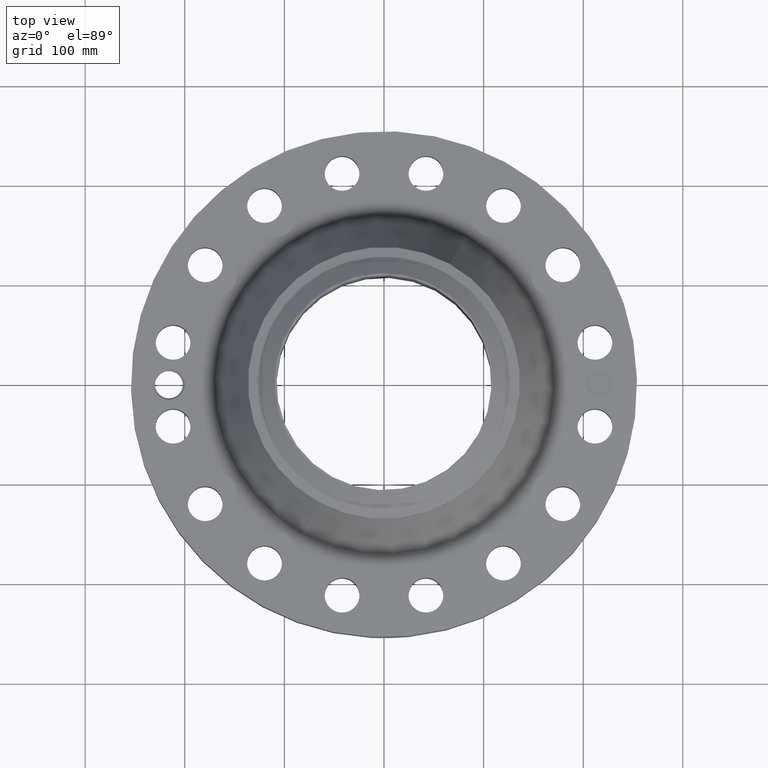
[diagram: clean part render]
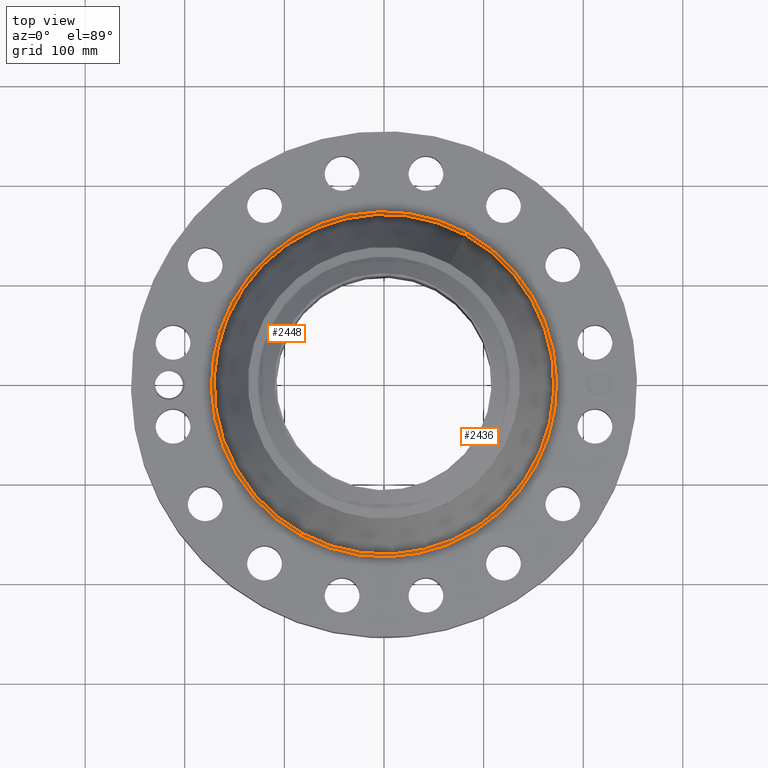
[diagram: same view with one multi-face feature highlighted, each face labeled with its STEP entity id]
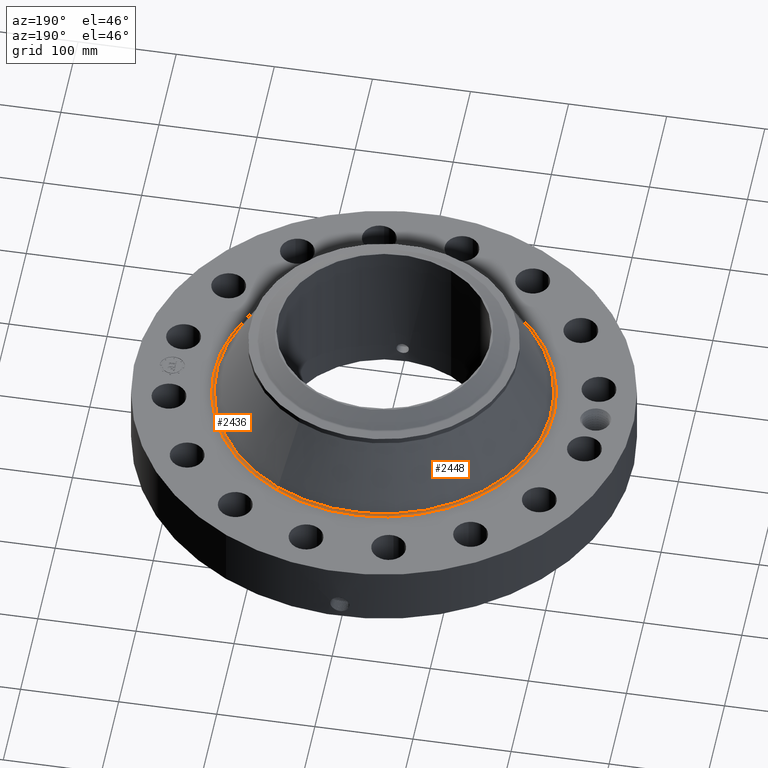
[diagram: same view with one multi-face feature highlighted, each face labeled with its STEP entity id]
A machine part, top view. The highlighted faces form ONE feature: a constant-radius fillet chain: 2 tangent blend faces with common blend radius 3.048 mm. The faces share edges in the B-rep.
A second angle (auxiliary view) of the same feature is appended — it is thin or edge-on in the first view.
Their STEP definitions:
[1] entity #2436 (Torus):
#733=AXIS2_PLACEMENT_3D('Circle Axis2P3D',#731,#732,$) ;
#2409=AXIS2_PLACEMENT_3D('Torus Axis2P3D',#2406,#2407,#2408) ;
#2413=AXIS2_PLACEMENT_3D('Circle Axis2P3D',#2411,#2412,$) ;
#2420=AXIS2_PLACEMENT_3D('Circle Axis2P3D',#2418,#2419,$) ;
#2427=AXIS2_PLACEMENT_3D('Circle Axis2P3D',#2425,#2426,$) ;
#726=CARTESIAN_POINT('Vertex',(-3.27128909565,-5.98805452376,2.75000000001)) ;
#728=CARTESIAN_POINT('Vertex',(3.27128909565,5.98805452376,2.75000000001)) ;
#731=CARTESIAN_POINT('Axis2P3D Location',(0.,0.,2.75000000001)) ;
#2406=CARTESIAN_POINT('Axis2P3D Location',(0.,0.,2.87000000001)) ;
#2411=CARTESIAN_POINT('Axis2P3D Location',(3.27128909565,5.98805452376,2.87000000001)) ;
#2415=CARTESIAN_POINT('Vertex',(3.22008704358,5.89432979612,2.81528231281)) ;
#2418=CARTESIAN_POINT('Axis2P3D Location',(0.,0.,2.81528231281)) ;
#2422=CARTESIAN_POINT('Vertex',(-3.22008704358,-5.89432979612,2.81528231281)) ;
#2425=CARTESIAN_POINT('Axis2P3D Location',(-3.27128909565,-5.98805452376,2.87000000001)) ;
#732=DIRECTION('Axis2P3D Direction',(0.,0.,-0.0393700787402)) ;
#2407=DIRECTION('Axis2P3D Direction',(0.,0.,-0.0393700787402)) ;
#2408=DIRECTION('Axis2P3D XDirection',(-0.0188750212049,-0.0345504945626,0.)) ;
#2412=DIRECTION('Axis2P3D Direction',(-0.0345504945626,0.0188750212049,0.)) ;
#2419=DIRECTION('Axis2P3D Direction',(0.,0.,-0.0393700787402)) ;
#2426=DIRECTION('Axis2P3D Direction',(0.0345504945626,-0.0188750212049,0.)) ;
#2431=ORIENTED_EDGE('',*,*,#735,.F.) ;
#2432=ORIENTED_EDGE('',*,*,#2417,.T.) ;
#2433=ORIENTED_EDGE('',*,*,#2424,.T.) ;
#2434=ORIENTED_EDGE('',*,*,#2429,.F.) ;
#2436=ADVANCED_FACE('PartBody',(#2435),#2410,.F.) ;
#734=CIRCLE('generated circle',#733,6.82335176631) ;
#2414=CIRCLE('generated circle',#2413,0.12) ;
#2421=CIRCLE('generated circle',#2420,6.71655300833) ;
#2428=CIRCLE('generated circle',#2427,0.12) ;
#2410=TOROIDAL_SURFACE('homeo Torus',#2409,6.82335176631,0.12) ;
#735=EDGE_CURVE('',#729,#727,#734,.T.) ;
#2417=EDGE_CURVE('',#729,#2416,#2414,.T.) ;
#2424=EDGE_CURVE('',#2416,#2423,#2421,.T.) ;
#2429=EDGE_CURVE('',#727,#2423,#2428,.T.) ;
#2430=EDGE_LOOP('',(#2431,#2432,#2433,#2434)) ;
#2435=FACE_OUTER_BOUND('',#2430,.T.) ;
#727=VERTEX_POINT('',#726) ;
#729=VERTEX_POINT('',#728) ;
#2416=VERTEX_POINT('',#2415) ;
#2423=VERTEX_POINT('',#2422) ;
[2] entity #2448 (Torus):
#724=AXIS2_PLACEMENT_3D('Circle Axis2P3D',#722,#723,$) ;
#2409=AXIS2_PLACEMENT_3D('Torus Axis2P3D',#2406,#2407,#2408) ;
#2413=AXIS2_PLACEMENT_3D('Circle Axis2P3D',#2411,#2412,$) ;
#2427=AXIS2_PLACEMENT_3D('Circle Axis2P3D',#2425,#2426,$) ;
#2439=AXIS2_PLACEMENT_3D('Circle Axis2P3D',#2437,#2438,$) ;
#722=CARTESIAN_POINT('Axis2P3D Location',(0.,0.,2.75000000001)) ;
#726=CARTESIAN_POINT('Vertex',(-3.27128909565,-5.98805452376,2.75000000001)) ;
#728=CARTESIAN_POINT('Vertex',(3.27128909565,5.98805452376,2.75000000001)) ;
#2406=CARTESIAN_POINT('Axis2P3D Location',(0.,0.,2.87000000001)) ;
#2411=CARTESIAN_POINT('Axis2P3D Location',(3.27128909565,5.98805452376,2.87000000001)) ;
#2415=CARTESIAN_POINT('Vertex',(3.22008704358,5.89432979612,2.81528231281)) ;
#2422=CARTESIAN_POINT('Vertex',(-3.22008704358,-5.89432979612,2.81528231281)) ;
#2425=CARTESIAN_POINT('Axis2P3D Location',(-3.27128909565,-5.98805452376,2.87000000001)) ;
#2437=CARTESIAN_POINT('Axis2P3D Location',(0.,0.,2.81528231281)) ;
#723=DIRECTION('Axis2P3D Direction',(0.,0.,-0.0393700787402)) ;
#2407=DIRECTION('Axis2P3D Direction',(0.,0.,-0.0393700787402)) ;
#2408=DIRECTION('Axis2P3D XDirection',(-0.0188750212049,-0.0345504945626,0.)) ;
#2412=DIRECTION('Axis2P3D Direction',(-0.0345504945626,0.0188750212049,0.)) ;
#2426=DIRECTION('Axis2P3D Direction',(0.0345504945626,-0.0188750212049,0.)) ;
#2438=DIRECTION('Axis2P3D Direction',(0.,0.,-0.0393700787402)) ;
#2443=ORIENTED_EDGE('',*,*,#730,.F.) ;
#2444=ORIENTED_EDGE('',*,*,#2429,.T.) ;
#2445=ORIENTED_EDGE('',*,*,#2441,.T.) ;
#2446=ORIENTED_EDGE('',*,*,#2417,.F.) ;
#2448=ADVANCED_FACE('PartBody',(#2447),#2410,.F.) ;
#725=CIRCLE('generated circle',#724,6.82335176631) ;
#2414=CIRCLE('generated circle',#2413,0.12) ;
#2428=CIRCLE('generated circle',#2427,0.12) ;
#2440=CIRCLE('generated circle',#2439,6.71655300833) ;
#2410=TOROIDAL_SURFACE('homeo Torus',#2409,6.82335176631,0.12) ;
#730=EDGE_CURVE('',#727,#729,#725,.T.) ;
#2417=EDGE_CURVE('',#729,#2416,#2414,.T.) ;
#2429=EDGE_CURVE('',#727,#2423,#2428,.T.) ;
#2441=EDGE_CURVE('',#2423,#2416,#2440,.T.) ;
#2442=EDGE_LOOP('',(#2443,#2444,#2445,#2446)) ;
#2447=FACE_OUTER_BOUND('',#2442,.T.) ;
#727=VERTEX_POINT('',#726) ;
#729=VERTEX_POINT('',#728) ;
#2416=VERTEX_POINT('',#2415) ;
#2423=VERTEX_POINT('',#2422) ;